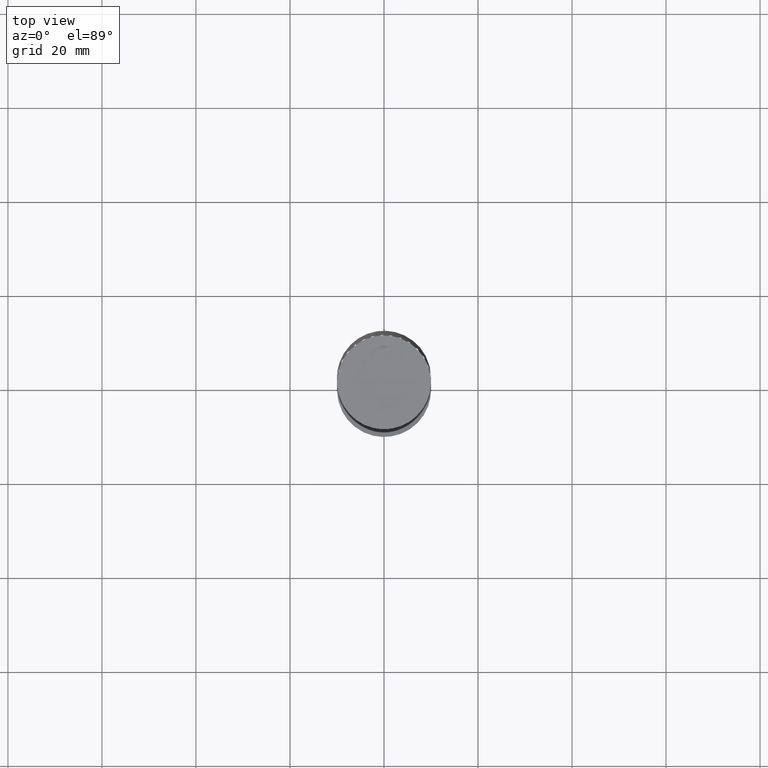
[diagram: clean part render]
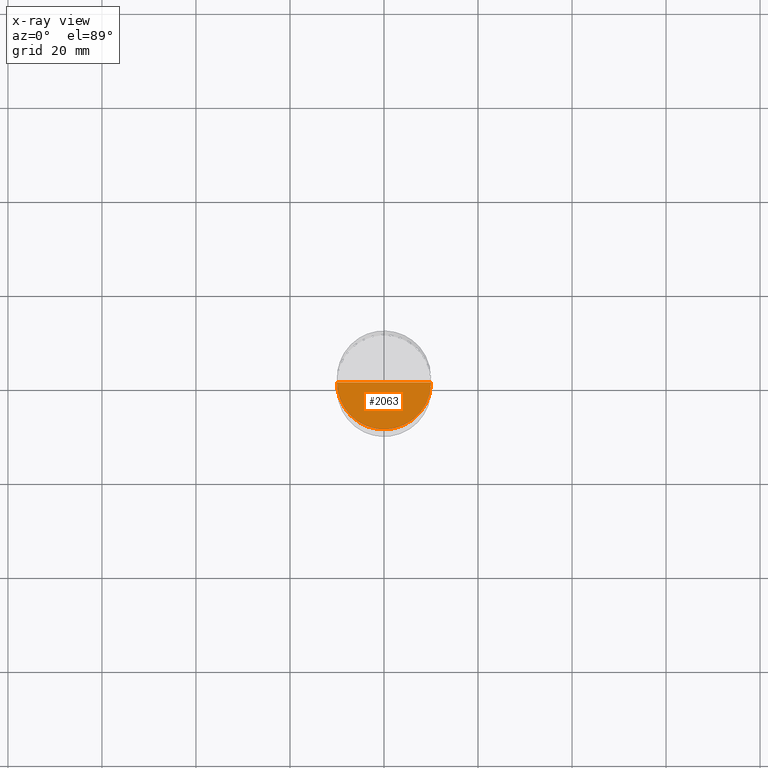
[diagram: x-ray — body ghosted, one internal face saturated and labeled with its STEP entity id]
A machine part, top view, then the same camera in x-ray: the body is ghosted and one INTERNAL B-rep face — a face not visible from any outside direction — is saturated and labeled: STEP entity #2063.
In plain terms, the highlighted face is a freeform B-spline surface patch.
Its self-contained STEP definition (entity closure, byte-faithful):
#1910=CARTESIAN_POINT('',(10.0,0.0,-7.0));
#1914=CARTESIAN_POINT('',(-10.0,0.0,-7.0));
#1915=CARTESIAN_POINT('',(0.0,0.0,-7.0));
#1919=CARTESIAN_POINT('',(-10.0,-10.0,-7.0));
#1920=CARTESIAN_POINT('',(0.0,-10.0,-7.0));
#1921=CARTESIAN_POINT('',(10.0,-10.0,-7.0));
#2048=(
BOUNDED_SURFACE()
B_SPLINE_SURFACE(1,2,(
(#1914,#1919,#1920,#1921,#1910),
(#1915,#1915,#1915,#1915,#1915)
), .UNSPECIFIED.,.F.,.F.,.F.)
B_SPLINE_SURFACE_WITH_KNOTS((2,2),(3,2,3),(
0.0,1.0),(
0.0,0.5,1.0), .UNSPECIFIED.)
GEOMETRIC_REPRESENTATION_ITEM()
RATIONAL_B_SPLINE_SURFACE(((1.0,0.707106781187,1.0,0.707106781187,1.0),
(1.0,0.707106781187,1.0,0.707106781187,1.0)
))
REPRESENTATION_ITEM('')
SURFACE()
);
#2049=(
BOUNDED_CURVE()
B_SPLINE_CURVE(2,(#1910,#1921,#1920,#1919,#1914),.UNSPECIFIED.,.F.,.F.)
B_SPLINE_CURVE_WITH_KNOTS((3,2,3),
(0.0,0.5,1.0),.UNSPECIFIED.)
CURVE()
GEOMETRIC_REPRESENTATION_ITEM()
RATIONAL_B_SPLINE_CURVE((1.0,0.707106781187,1.0,0.707106781187,1.0))
REPRESENTATION_ITEM('')
);
#2050=(
BOUNDED_CURVE()
B_SPLINE_CURVE(1,(#1914,#1915),.UNSPECIFIED.,.F.,.F.)
B_SPLINE_CURVE_WITH_KNOTS((2,2),
(0.0,1.0),.UNSPECIFIED.)
CURVE()
GEOMETRIC_REPRESENTATION_ITEM()
RATIONAL_B_SPLINE_CURVE((1.0,1.0))
REPRESENTATION_ITEM('')
);
#2051=(
BOUNDED_CURVE()
B_SPLINE_CURVE(1,(#1915,#1910),.UNSPECIFIED.,.F.,.F.)
B_SPLINE_CURVE_WITH_KNOTS((2,2),
(0.0,1.0),.UNSPECIFIED.)
CURVE()
GEOMETRIC_REPRESENTATION_ITEM()
RATIONAL_B_SPLINE_CURVE((1.0,1.0))
REPRESENTATION_ITEM('')
);
#2052=VERTEX_POINT('',#1910);
#2053=VERTEX_POINT('',#1914);
#2054=VERTEX_POINT('',#1915);
#2055=EDGE_CURVE('',#2052,#2053,#2049,.T.);
#2056=EDGE_CURVE('',#2053,#2054,#2050,.T.);
#2057=EDGE_CURVE('',#2054,#2052,#2051,.T.);
#2058=ORIENTED_EDGE('',*,*,#2055,.T.);
#2059=ORIENTED_EDGE('',*,*,#2056,.T.);
#2060=ORIENTED_EDGE('',*,*,#2057,.T.);
#2061=EDGE_LOOP('',(#2058,#2059,#2060));
#2062=FACE_OUTER_BOUND('',#2061,.T.);
#2063=ADVANCED_FACE('',(#2062),#2048,.T.);